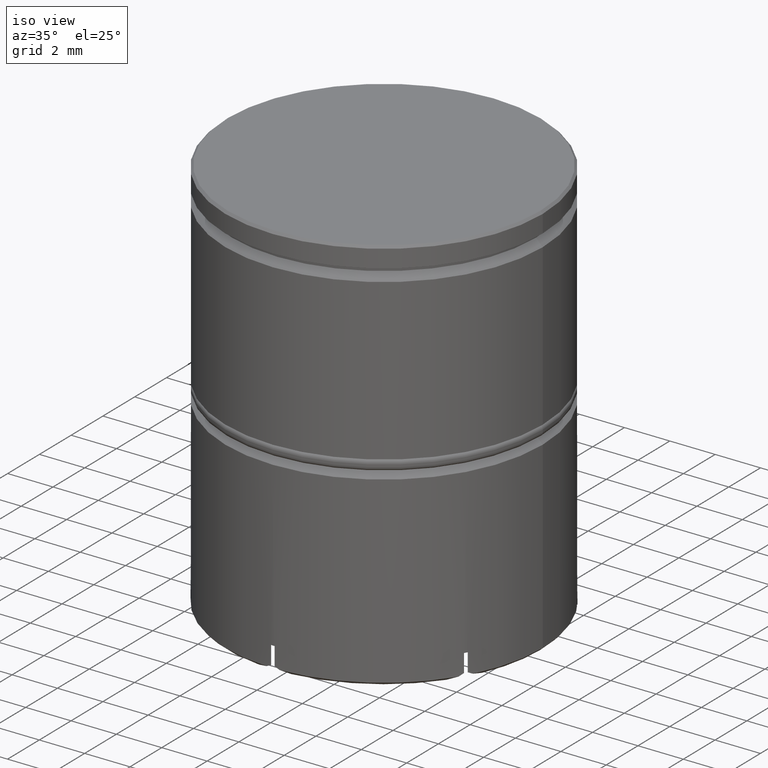
[diagram: clean part render]
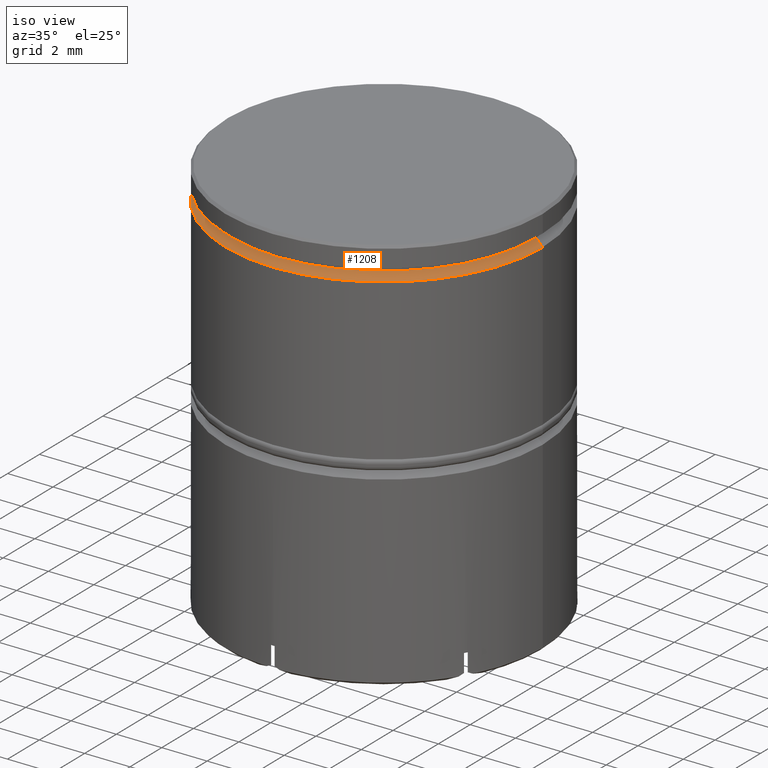
[diagram: same view with one face highlighted and labeled with its STEP entity id]
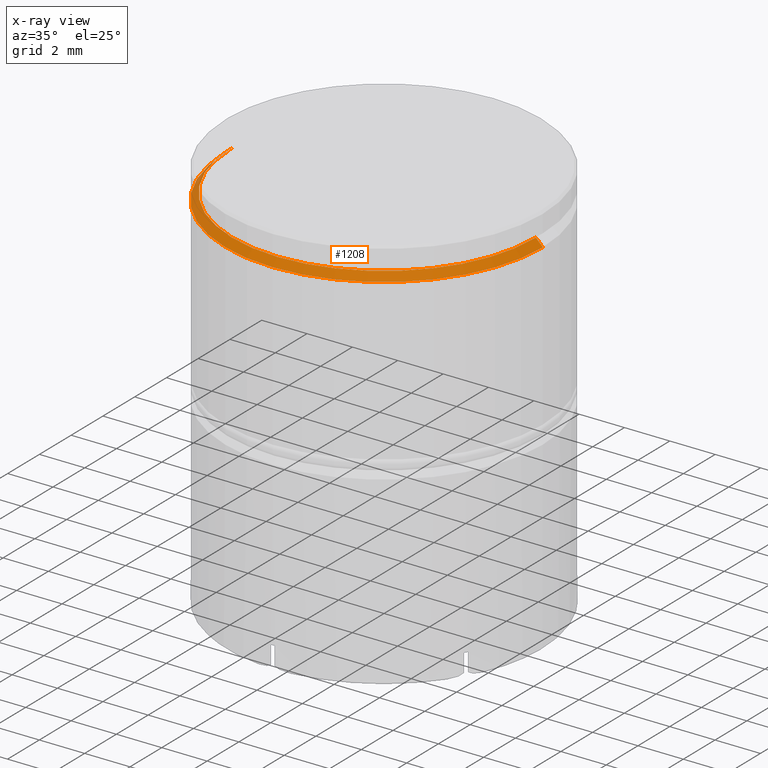
[diagram: x-ray of the same camera — body ghosted, the highlighted face saturated]
A machine part, iso view. The second image highlights one B-rep face of the part: STEP entity #1208.
The next image is the same camera in x-ray: the body ghosted, the highlighted face saturated — about 1% of this face is hidden behind the body in this view.
In plain terms, the highlighted conical surface has half-angle 45 deg.
Its self-contained STEP definition (entity closure, byte-faithful):
#14 = CARTESIAN_POINT ( 'NONE',  ( 6.699999999999997513, 8.205133554287261632E-16, -1.125000000000000222 ) ) ;
#51 = VECTOR ( 'NONE', #441, 1000.000000000000114 ) ;
#151 = AXIS2_PLACEMENT_3D ( 'NONE', #315, #322, #826 ) ;
#171 = ORIENTED_EDGE ( 'NONE', *, *, #1154, .F. ) ;
#182 = VERTEX_POINT ( 'NONE', #422 ) ;
#217 = DIRECTION ( 'NONE',  ( 1.000000000000000000, 0.000000000000000000, 0.000000000000000000 ) ) ;
#262 = CONICAL_SURFACE ( 'NONE', #896, 6.699999999999997513, 0.7853981633974453924 ) ;
#269 = CARTESIAN_POINT ( 'NONE',  ( 0.000000000000000000, 0.000000000000000000, -1.125000000000000222 ) ) ;
#277 = AXIS2_PLACEMENT_3D ( 'NONE', #778, #1279, #217 ) ;
#310 = CARTESIAN_POINT ( 'NONE',  ( 7.000000000000000888, 0.000000000000000000, -1.425000000000005151 ) ) ;
#313 = VERTEX_POINT ( 'NONE', #310 ) ;
#314 = EDGE_CURVE ( 'NONE', #1183, #329, #1455, .T. ) ;
#315 = CARTESIAN_POINT ( 'NONE',  ( 0.000000000000000000, 0.000000000000000000, -1.125000000000000222 ) ) ;
#322 = DIRECTION ( 'NONE',  ( -0.000000000000000000, -0.000000000000000000, 1.000000000000000000 ) ) ;
#329 = VERTEX_POINT ( 'NONE', #569 ) ;
#408 = CIRCLE ( 'NONE', #277, 7.000000000000000888 ) ;
#422 = CARTESIAN_POINT ( 'NONE',  ( 6.700000000000001066, 0.000000000000000000, -1.125000000000000222 ) ) ;
#441 = DIRECTION ( 'NONE',  ( -0.7071067811865455743, 0.000000000000000000, -0.7071067811865495711 ) ) ;
#569 = CARTESIAN_POINT ( 'NONE',  ( -7.000000000000000888, 8.572527594031474176E-16, -1.425000000000005151 ) ) ;
#645 = EDGE_LOOP ( 'NONE', ( #171, #1306, #1224, #1392 ) ) ;
#650 = DIRECTION ( 'NONE',  ( 0.000000000000000000, 0.000000000000000000, -1.000000000000000000 ) ) ;
#746 = VECTOR ( 'NONE', #886, 1000.000000000000114 ) ;
#778 = CARTESIAN_POINT ( 'NONE',  ( 0.000000000000000000, 0.000000000000000000, -1.425000000000005151 ) ) ;
#826 = DIRECTION ( 'NONE',  ( 1.000000000000000000, 0.000000000000000000, 0.000000000000000000 ) ) ;
#886 = DIRECTION ( 'NONE',  ( 0.7071067811865455743, 8.659560562354906974E-17, -0.7071067811865495711 ) ) ;
#896 = AXIS2_PLACEMENT_3D ( 'NONE', #269, #650, #1516 ) ;
#969 = EDGE_CURVE ( 'NONE', #313, #329, #408, .T. ) ;
#1062 = CARTESIAN_POINT ( 'NONE',  ( -6.699999999999997513, 0.000000000000000000, -1.125000000000000222 ) ) ;
#1154 = EDGE_CURVE ( 'NONE', #182, #313, #1255, .T. ) ;
#1183 = VERTEX_POINT ( 'NONE', #1379 ) ;
#1208 = ADVANCED_FACE ( 'NONE', ( #1264 ), #262, .T. ) ;
#1224 = ORIENTED_EDGE ( 'NONE', *, *, #314, .T. ) ;
#1255 = LINE ( 'NONE', #14, #746 ) ;
#1264 = FACE_OUTER_BOUND ( 'NONE', #645, .T. ) ;
#1279 = DIRECTION ( 'NONE',  ( 0.000000000000000000, 0.000000000000000000, -1.000000000000000000 ) ) ;
#1306 = ORIENTED_EDGE ( 'NONE', *, *, #1544, .F. ) ;
#1379 = CARTESIAN_POINT ( 'NONE',  ( -6.700000000000001066, 8.205133554287267548E-16, -1.125000000000000222 ) ) ;
#1392 = ORIENTED_EDGE ( 'NONE', *, *, #969, .F. ) ;
#1455 = LINE ( 'NONE', #1062, #51 ) ;
#1516 = DIRECTION ( 'NONE',  ( -1.000000000000000000, 0.000000000000000000, 0.000000000000000000 ) ) ;
#1544 = EDGE_CURVE ( 'NONE', #1183, #182, #1620, .T. ) ;
#1620 = CIRCLE ( 'NONE', #151, 6.700000000000001066 ) ;